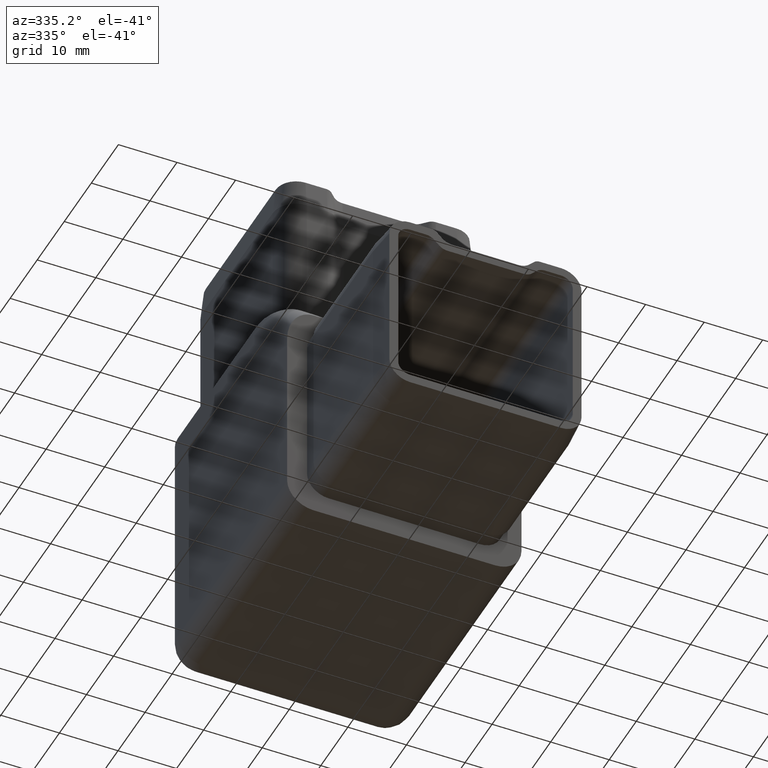
[diagram: clean part render]
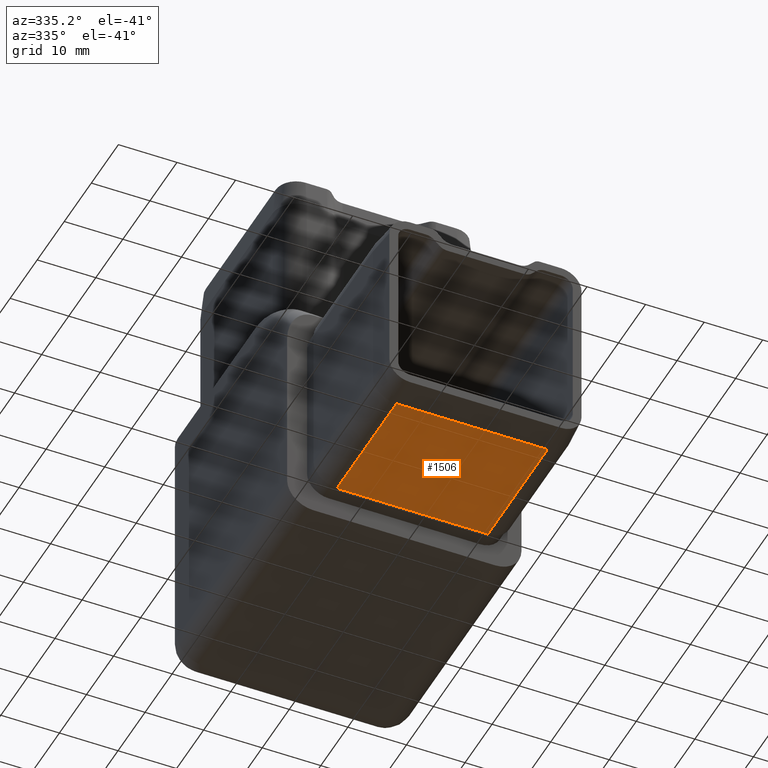
[diagram: same view with one face highlighted and labeled with its STEP entity id]
A machine part, auxiliary view. The second image highlights one B-rep face of the part: STEP entity #1506.
In plain terms, the highlighted planar face has unit normal (0, 0, -1).
Its self-contained STEP definition (entity closure, byte-faithful):
#510 = LINE ( 'NONE', #4932, #17663 ) ;
#1506 = ADVANCED_FACE ( 'NONE', ( #3920 ), #2559, .T. ) ;
#2559 = PLANE ( 'NONE',  #21126 ) ;
#3057 = ORIENTED_EDGE ( 'NONE', *, *, #12434, .F. ) ;
#3547 = ORIENTED_EDGE ( 'NONE', *, *, #3968, .F. ) ;
#3920 = FACE_OUTER_BOUND ( 'NONE', #16034, .T. ) ;
#3968 = EDGE_CURVE ( 'NONE', #8140, #26104, #4703, .T. ) ;
#4121 = DIRECTION ( 'NONE',  ( 0.0000000000000000000, 1.000000000000000000, 4.440892098500625200E-016 ) ) ;
#4194 = CARTESIAN_POINT ( 'NONE',  ( 0.0000000000000000000, -25.49999999999999600, -19.40000000000001300 ) ) ;
#4244 = CARTESIAN_POINT ( 'NONE',  ( -12.90000000000000600, -25.49999999999999300, -19.40000000000001600 ) ) ;
#4455 = DIRECTION ( 'NONE',  ( 0.0000000000000000000, 4.440892098500625200E-016, -1.000000000000000000 ) ) ;
#4703 = LINE ( 'NONE', #11927, #26007 ) ;
#4932 = CARTESIAN_POINT ( 'NONE',  ( 12.90000000000000900, -52.49999999999999300, -19.40000000000002300 ) ) ;
#5924 = EDGE_CURVE ( 'NONE', #8140, #9895, #15775, .T. ) ;
#6287 = LINE ( 'NONE', #4244, #23387 ) ;
#6764 = ORIENTED_EDGE ( 'NONE', *, *, #23472, .T. ) ;
#7286 = CARTESIAN_POINT ( 'NONE',  ( -12.90000000000000700, -47.50000000000000700, -19.40000000000002700 ) ) ;
#7292 = EDGE_CURVE ( 'NONE', #25628, #12300, #510, .T. ) ;
#7302 = CARTESIAN_POINT ( 'NONE',  ( 12.90000000000000600, -47.49999999999999300, -19.40000000000002300 ) ) ;
#7342 = VECTOR ( 'NONE', #14780, 1000.000000000000000 ) ;
#7948 = DIRECTION ( 'NONE',  ( 1.000000000000000000, 0.0000000000000000000, 0.0000000000000000000 ) ) ;
#8140 = VERTEX_POINT ( 'NONE', #7286 ) ;
#9895 = VERTEX_POINT ( 'NONE', #15825 ) ;
#9934 = CARTESIAN_POINT ( 'NONE',  ( 12.90000000000000600, -47.49999999999999300, -19.40000000000002300 ) ) ;
#11927 = CARTESIAN_POINT ( 'NONE',  ( -12.90000000000000700, -47.50000000000000700, -19.40000000000002700 ) ) ;
#12300 = VERTEX_POINT ( 'NONE', #9934 ) ;
#12434 = EDGE_CURVE ( 'NONE', #25628, #13219, #20910, .T. ) ;
#13219 = VERTEX_POINT ( 'NONE', #4194 ) ;
#14504 = CARTESIAN_POINT ( 'NONE',  ( -12.90000000000000600, -52.49999999999999300, -19.40000000000002300 ) ) ;
#14690 = ORIENTED_EDGE ( 'NONE', *, *, #5924, .T. ) ;
#14780 = DIRECTION ( 'NONE',  ( -1.000000000000000000, -0.0000000000000000000, -0.0000000000000000000 ) ) ;
#15775 = LINE ( 'NONE', #14504, #19958 ) ;
#15825 = CARTESIAN_POINT ( 'NONE',  ( -12.90000000000000600, -25.49999999999999300, -19.40000000000001600 ) ) ;
#16034 = EDGE_LOOP ( 'NONE', ( #16962, #3547, #14690, #6764, #3057, #20580 ) ) ;
#16861 = EDGE_CURVE ( 'NONE', #12300, #26104, #17073, .T. ) ;
#16962 = ORIENTED_EDGE ( 'NONE', *, *, #16861, .T. ) ;
#17073 = LINE ( 'NONE', #7302, #26770 ) ;
#17663 = VECTOR ( 'NONE', #21438, 1000.000000000000000 ) ;
#18681 = DIRECTION ( 'NONE',  ( 1.000000000000000000, 0.0000000000000000000, 0.0000000000000000000 ) ) ;
#19958 = VECTOR ( 'NONE', #4121, 1000.000000000000000 ) ;
#20224 = CARTESIAN_POINT ( 'NONE',  ( 12.90000000000000600, -25.49999999999999600, -19.40000000000001300 ) ) ;
#20580 = ORIENTED_EDGE ( 'NONE', *, *, #7292, .T. ) ;
#20890 = CARTESIAN_POINT ( 'NONE',  ( 12.90000000000000600, -25.49999999999999600, -19.40000000000001300 ) ) ;
#20910 = LINE ( 'NONE', #20890, #7342 ) ;
#21115 = CARTESIAN_POINT ( 'NONE',  ( -16.90000000000000600, -52.49999999999999300, -19.40000000000002300 ) ) ;
#21126 = AXIS2_PLACEMENT_3D ( 'NONE', #21115, #4455, #25173 ) ;
#21438 = DIRECTION ( 'NONE',  ( -0.0000000000000000000, -1.000000000000000000, -4.440892098500625200E-016 ) ) ;
#21528 = DIRECTION ( 'NONE',  ( -1.000000000000000000, -0.0000000000000000000, -0.0000000000000000000 ) ) ;
#23387 = VECTOR ( 'NONE', #18681, 1000.000000000000000 ) ;
#23472 = EDGE_CURVE ( 'NONE', #9895, #13219, #6287, .T. ) ;
#24946 = CARTESIAN_POINT ( 'NONE',  ( 1.734723475976807100E-015, -47.50000000000000700, -19.40000000000002700 ) ) ;
#25173 = DIRECTION ( 'NONE',  ( 0.0000000000000000000, 1.000000000000000000, 4.440892098500625200E-016 ) ) ;
#25628 = VERTEX_POINT ( 'NONE', #20224 ) ;
#26007 = VECTOR ( 'NONE', #7948, 1000.000000000000000 ) ;
#26104 = VERTEX_POINT ( 'NONE', #24946 ) ;
#26770 = VECTOR ( 'NONE', #21528, 1000.000000000000000 ) ;